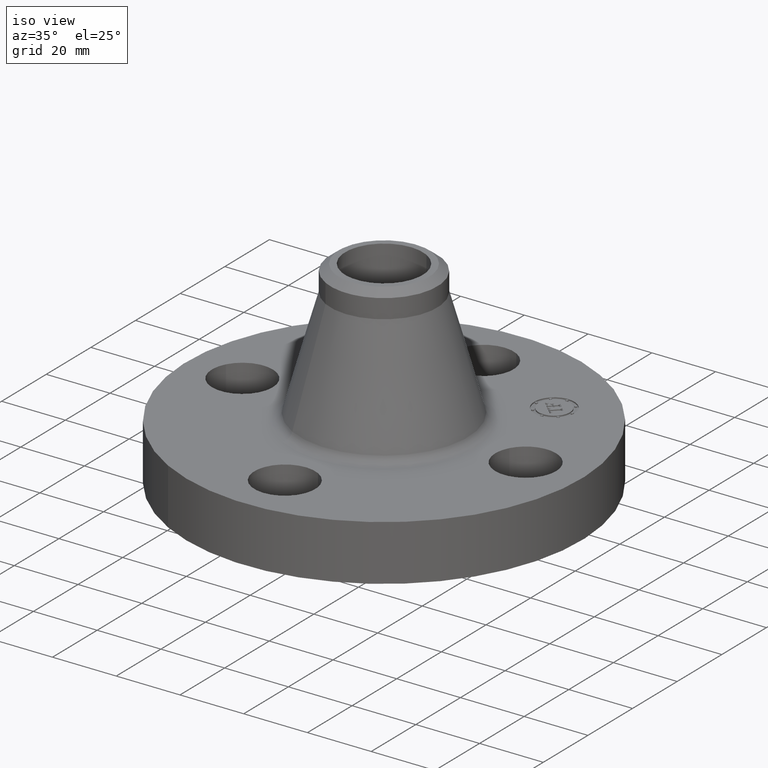
[diagram: clean part render]
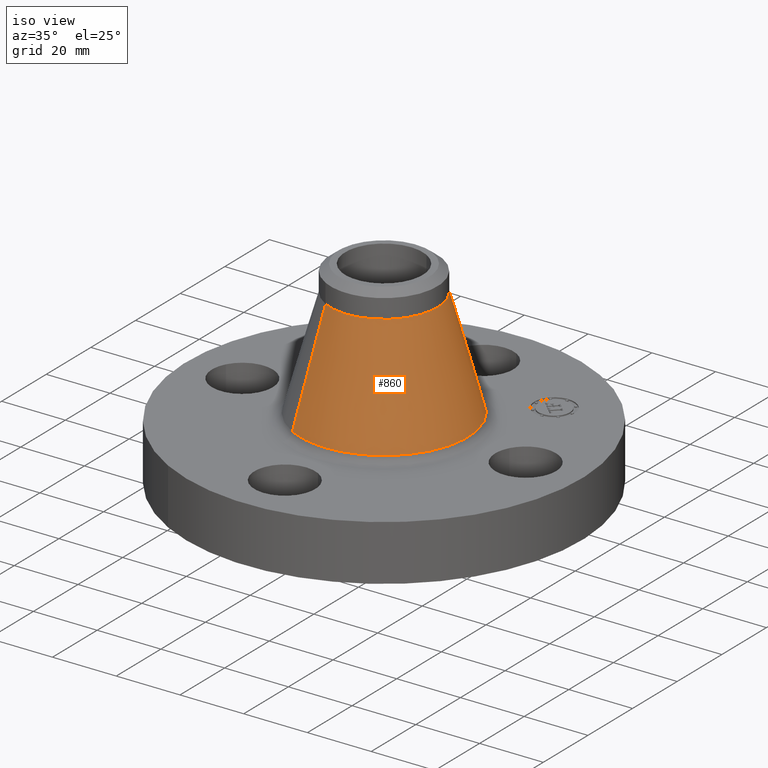
[diagram: same view with one face highlighted and labeled with its STEP entity id]
A machine part, iso view. The second image highlights one B-rep face of the part: STEP entity #860.
In plain terms, the highlighted conical surface has half-angle 15.576 deg.
Its self-contained STEP definition (entity closure, byte-faithful):
#679=AXIS2_PLACEMENT_3D('Circle Axis2P3D',#677,#678,$) ;
#847=AXIS2_PLACEMENT_3D('Cone Axis2P3D',#844,#845,#846) ;
#851=AXIS2_PLACEMENT_3D('Circle Axis2P3D',#849,#850,$) ;
#643=CARTESIAN_POINT('Vertex',(-0.496460113539,-0.908764142152,0.777777407987)) ;
#650=CARTESIAN_POINT('Vertex',(0.496460113539,0.908764142152,0.777777407988)) ;
#677=CARTESIAN_POINT('Axis2P3D Location',(0.,0.,0.777777407988)) ;
#811=CARTESIAN_POINT('Line Origine',(-0.406440484509,-0.743984316499,1.45135326756)) ;
#815=CARTESIAN_POINT('Vertex',(-0.31642085548,-0.57920449085,2.12492912712)) ;
#822=CARTESIAN_POINT('Vertex',(0.31642085548,0.57920449085,2.12492912712)) ;
#825=CARTESIAN_POINT('Line Origine',(0.406440484509,0.743984316499,1.45135326756)) ;
#844=CARTESIAN_POINT('Axis2P3D Location',(0.,0.,2.12492912712)) ;
#849=CARTESIAN_POINT('Axis2P3D Location',(0.,0.,2.12492912712)) ;
#678=DIRECTION('Axis2P3D Direction',(-0.,0.,-0.0393700787402)) ;
#812=DIRECTION('Vector Direction',(-0.00506835089648,-0.00927755408533,-0.0379241599695)) ;
#826=DIRECTION('Vector Direction',(0.00506835089648,0.00927755408533,-0.0379241599695)) ;
#845=DIRECTION('Axis2P3D Direction',(0.,0.,-0.0393700787402)) ;
#846=DIRECTION('Axis2P3D XDirection',(0.0188750212049,0.0345504945626,0.)) ;
#850=DIRECTION('Axis2P3D Direction',(-0.,0.,-0.0393700787402)) ;
#813=VECTOR('Line Direction',#812,0.0393700787402) ;
#827=VECTOR('Line Direction',#826,0.0393700787402) ;
#855=ORIENTED_EDGE('',*,*,#681,.F.) ;
#856=ORIENTED_EDGE('',*,*,#829,.T.) ;
#857=ORIENTED_EDGE('',*,*,#853,.T.) ;
#858=ORIENTED_EDGE('',*,*,#817,.F.) ;
#860=ADVANCED_FACE('PartBody',(#859),#848,.T.) ;
#680=CIRCLE('generated circle',#679,1.03553122135) ;
#852=CIRCLE('generated circle',#851,0.660000000003) ;
#848=CONICAL_SURFACE('Cone',#847,0.660000000003,0.271857936206) ;
#681=EDGE_CURVE('',#651,#644,#680,.T.) ;
#817=EDGE_CURVE('',#644,#816,#814,.F.) ;
#829=EDGE_CURVE('',#651,#823,#828,.F.) ;
#853=EDGE_CURVE('',#823,#816,#852,.T.) ;
#854=EDGE_LOOP('',(#855,#856,#857,#858)) ;
#859=FACE_OUTER_BOUND('',#854,.T.) ;
#814=LINE('Line',#811,#813) ;
#828=LINE('Line',#825,#827) ;
#644=VERTEX_POINT('',#643) ;
#651=VERTEX_POINT('',#650) ;
#816=VERTEX_POINT('',#815) ;
#823=VERTEX_POINT('',#822) ;